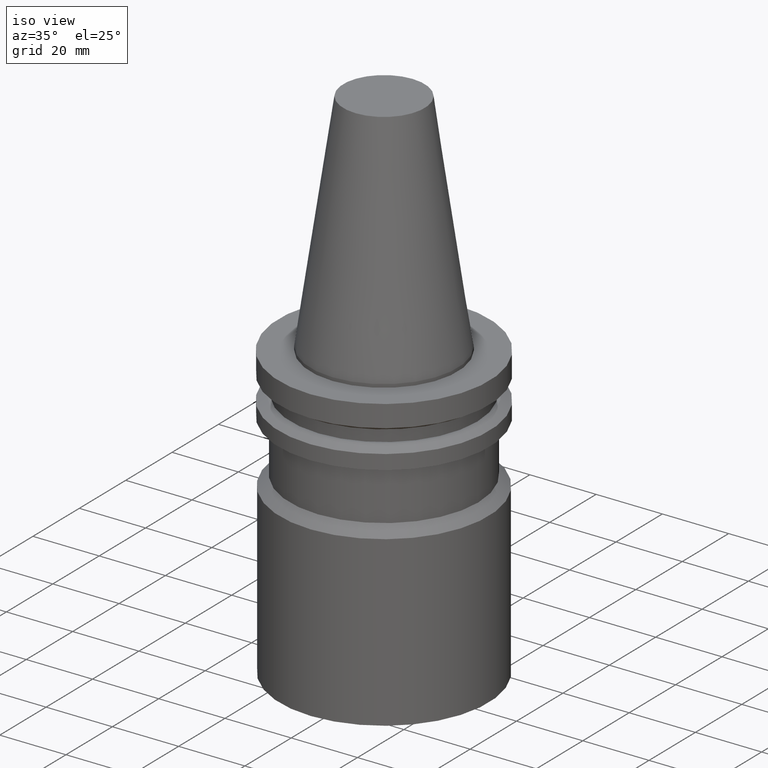
[diagram: clean part render]
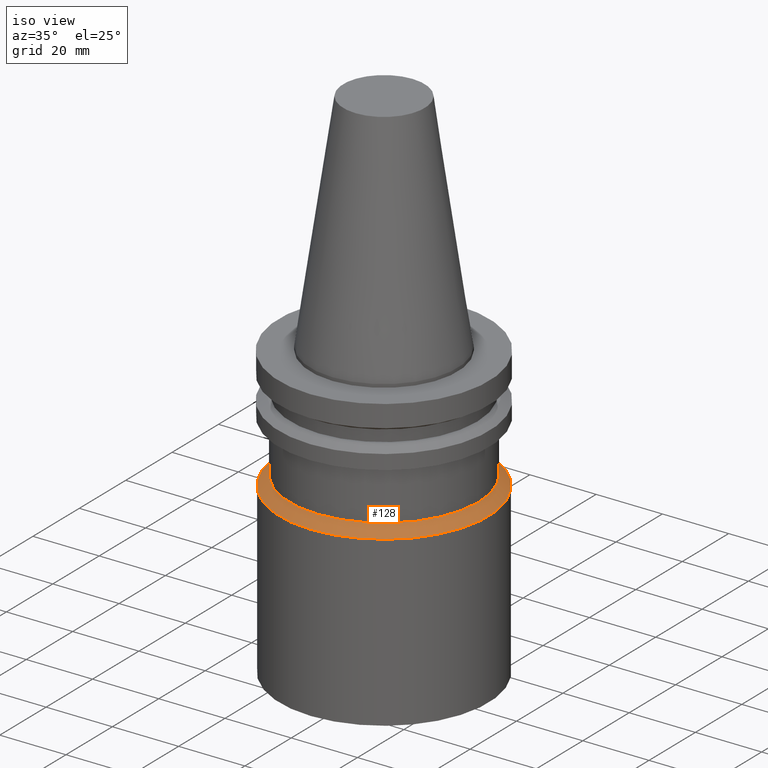
[diagram: same view with one face highlighted and labeled with its STEP entity id]
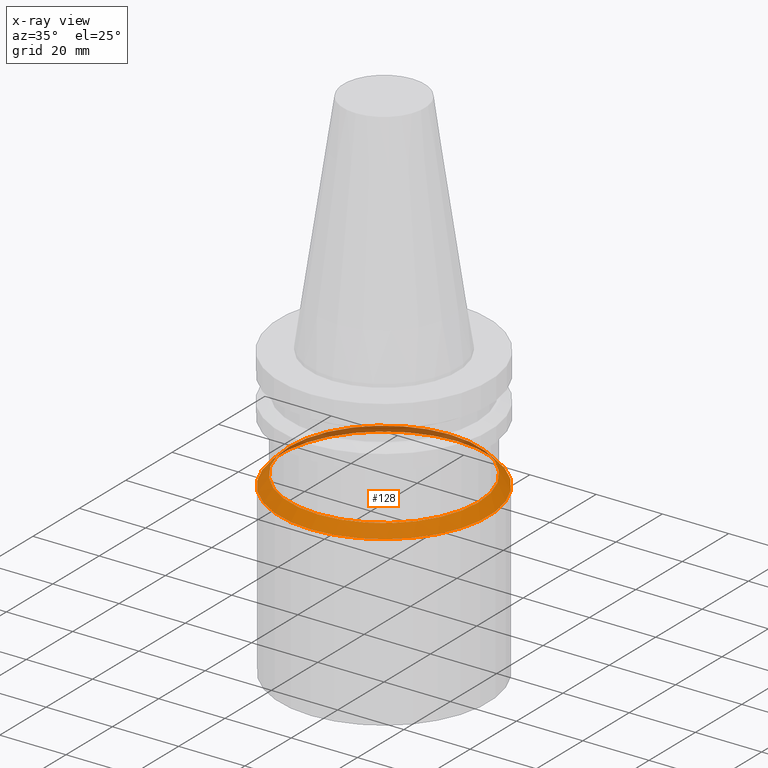
[diagram: x-ray of the same camera — body ghosted, the highlighted face saturated]
A machine part, iso view. The second image highlights one B-rep face of the part: STEP entity #128.
The next image is the same camera in x-ray: the body ghosted, the highlighted face saturated — about 17% of this face is hidden behind the body in this view.
In plain terms, the highlighted conical surface has half-angle 45 deg.
Its self-contained STEP definition (entity closure, byte-faithful):
#68=EDGE_CURVE('Unnamed[1]',#172,#172,#173,.T.);
#86=EDGE_CURVE('Unnamed[1]',#201,#201,#202,.T.);
#128=ADVANCED_FACE('Unnamed[1]',(#264,#265),#266,.T.);
#172=VERTEX_POINT('',#310);
#173=CIRCLE('',#311,28.5000000000001);
#201=VERTEX_POINT('',#346);
#202=CIRCLE('',#347,31.5);
#264=FACE_BOUND('',#424,.T.);
#265=FACE_BOUND('',#425,.T.);
#266=CONICAL_SURFACE('',#426,30.0000000000001,0.785398163397448);
#310=CARTESIAN_POINT('',(2.14313189850787E-015,28.5000000000001,-35.0000000000001));
#311=AXIS2_PLACEMENT_3D('',#463,#464,#465);
#346=CARTESIAN_POINT('',(2.32682891837997E-015,31.5,-38.0));
#347=AXIS2_PLACEMENT_3D('',#496,#497,#498);
#424=EDGE_LOOP('',(#565));
#425=EDGE_LOOP('',(#566));
#426=AXIS2_PLACEMENT_3D('',#567,#568,#569);
#463=CARTESIAN_POINT('',(2.14313189850787E-015,-1.67947258360904E-014,-35.0000000000001));
#464=DIRECTION('',(6.12323399573677E-017,4.57083562979924E-016,-1.0));
#465=DIRECTION('',(-3.28154488480819E-032,1.0,4.57083562979924E-016));
#496=CARTESIAN_POINT('',(2.32682891837997E-015,-1.54234751471506E-014,-38.0));
#497=DIRECTION('',(6.12323399573677E-017,4.57083562979919E-016,-1.0));
#498=DIRECTION('',(-3.28154488480827E-032,1.0,4.57083562979919E-016));
#565=ORIENTED_EDGE('',*,*,#86,.F.);
#566=ORIENTED_EDGE('',*,*,#68,.T.);
#567=CARTESIAN_POINT('',(2.23498040844392E-015,-1.61091004916205E-014,-36.5));
#568=DIRECTION('',(6.12323399573677E-017,4.57083562979921E-016,-1.0));
#569=DIRECTION('',(-3.28154488480808E-032,1.0,4.57083562979921E-016));